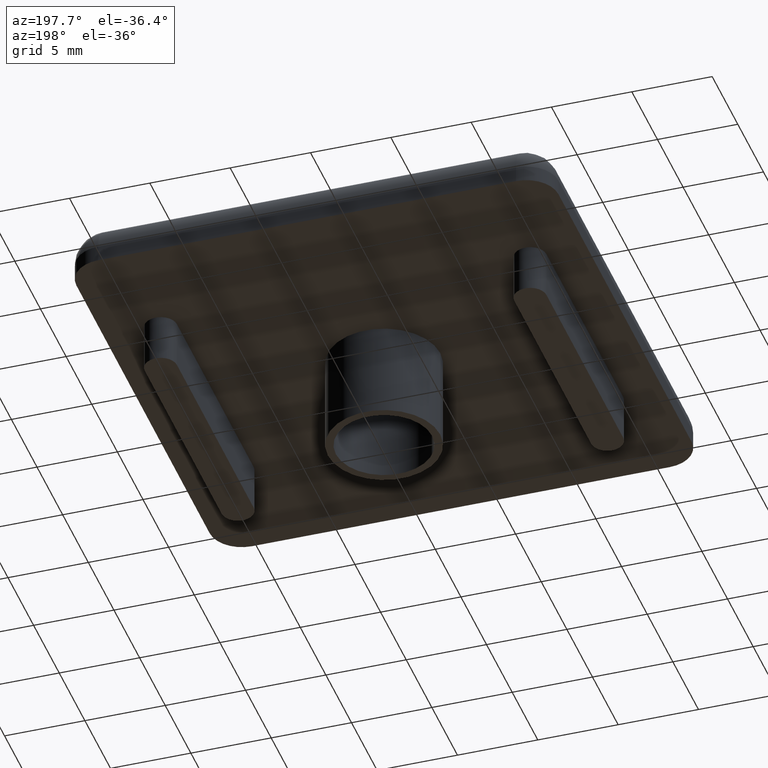
[diagram: clean part render]
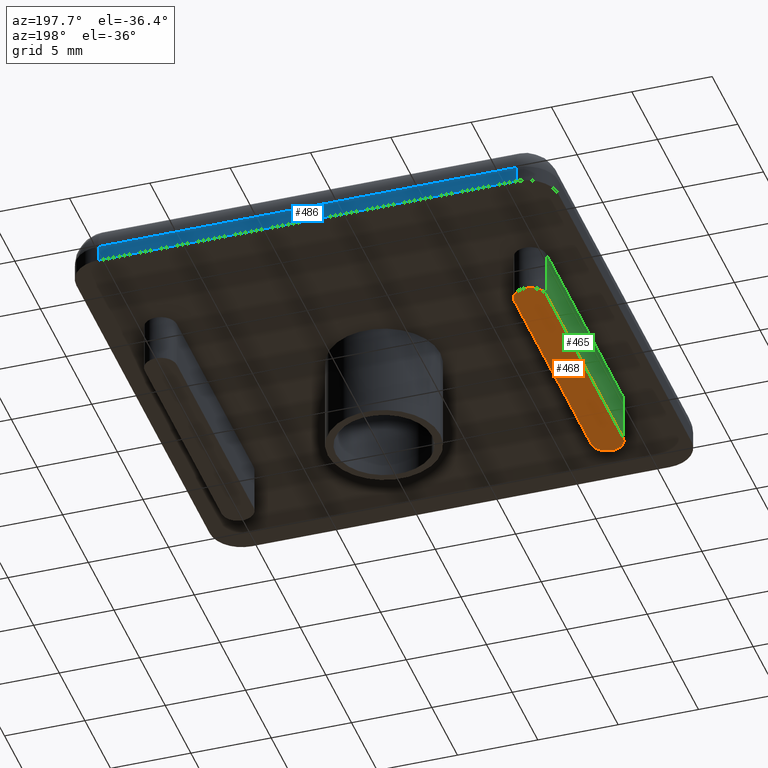
[diagram: same view with three faces highlighted in distinct colors, each labeled with its STEP entity id]
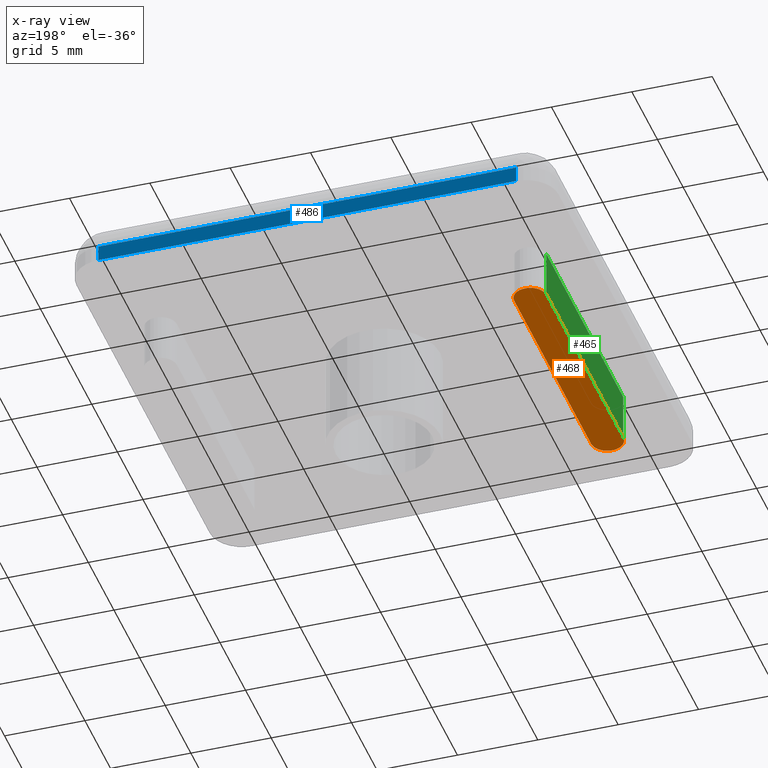
[diagram: x-ray of the same camera — body ghosted, the three highlighted faces saturated]
A machine part, auxiliary view with three faces highlighted in distinct colors.
The next image is the same camera in x-ray (body ghosted, the three faces saturated) — at least one of them is partly hidden behind the body in this view.
Their STEP definitions:

[orange] entity #468 — the highlighted planar face has unit normal (0, 0, 1).
#35=LINE('',#777,#71);
#38=LINE('',#784,#74);
#71=VECTOR('',#619,15.);
#74=VECTOR('',#628,15.);
#98=PLANE('',#518);
#124=FACE_OUTER_BOUND('',#162,.T.);
#162=EDGE_LOOP('',(#372,#373,#374,#375));
#195=CIRCLE('',#513,1.);
#196=CIRCLE('',#516,1.);
#233=VERTEX_POINT('',#770);
#234=VERTEX_POINT('',#772);
#235=VERTEX_POINT('',#776);
#236=VERTEX_POINT('',#780);
#278=EDGE_CURVE('',#234,#233,#195,.T.);
#280=EDGE_CURVE('',#235,#234,#35,.T.);
#282=EDGE_CURVE('',#236,#235,#196,.T.);
#284=EDGE_CURVE('',#233,#236,#38,.T.);
#372=ORIENTED_EDGE('',*,*,#284,.T.);
#373=ORIENTED_EDGE('',*,*,#282,.T.);
#374=ORIENTED_EDGE('',*,*,#280,.T.);
#375=ORIENTED_EDGE('',*,*,#278,.T.);
#468=ADVANCED_FACE('',(#124),#98,.F.);
#513=AXIS2_PLACEMENT_3D('',#773,#614,#615);
#516=AXIS2_PLACEMENT_3D('',#781,#623,#624);
#518=AXIS2_PLACEMENT_3D('',#785,#629,#630);
#614=DIRECTION('center_axis',(0.,0.,-1.));
#615=DIRECTION('ref_axis',(1.,0.,0.));
#619=DIRECTION('',(0.,1.,0.));
#623=DIRECTION('center_axis',(0.,0.,-1.));
#624=DIRECTION('ref_axis',(-1.,0.,0.));
#628=DIRECTION('',(0.,-1.,0.));
#629=DIRECTION('center_axis',(0.,0.,1.));
#630=DIRECTION('ref_axis',(1.,0.,0.));
#770=CARTESIAN_POINT('',(-10.5,7.5,-3.));
#772=CARTESIAN_POINT('',(-12.5,7.5,-3.));
#773=CARTESIAN_POINT('Origin',(-11.5,7.5,-3.));
#776=CARTESIAN_POINT('',(-12.5,-7.5,-3.));
#777=CARTESIAN_POINT('',(-12.5,7.5,-3.));
#780=CARTESIAN_POINT('',(-10.5,-7.5,-3.));
#781=CARTESIAN_POINT('Origin',(-11.5,-7.5,-3.));
#784=CARTESIAN_POINT('',(-10.5,-7.5,-3.));
#785=CARTESIAN_POINT('Origin',(-11.5,0.,-3.));

[blue] entity #486 — the highlighted planar face has unit normal (-0, 1, 0).
#22=LINE('',#735,#58);
#39=LINE('',#794,#75);
#42=LINE('',#805,#78);
#54=LINE('',#837,#90);
#58=VECTOR('',#578,26.);
#75=VECTOR('',#641,1.);
#78=VECTOR('',#654,1.);
#90=VECTOR('',#694,26.);
#104=PLANE('',#548);
#142=FACE_OUTER_BOUND('',#180,.T.);
#180=EDGE_LOOP('',(#437,#438,#439,#440));
#214=VERTEX_POINT('',#721);
#220=VERTEX_POINT('',#733);
#239=VERTEX_POINT('',#790);
#240=VERTEX_POINT('',#797);
#260=EDGE_CURVE('',#220,#214,#22,.T.);
#288=EDGE_CURVE('',#214,#239,#39,.T.);
#294=EDGE_CURVE('',#240,#220,#42,.T.);
#312=EDGE_CURVE('',#239,#240,#54,.T.);
#437=ORIENTED_EDGE('',*,*,#288,.F.);
#438=ORIENTED_EDGE('',*,*,#260,.F.);
#439=ORIENTED_EDGE('',*,*,#294,.F.);
#440=ORIENTED_EDGE('',*,*,#312,.F.);
#486=ADVANCED_FACE('',(#142),#104,.T.);
#548=AXIS2_PLACEMENT_3D('',#843,#705,#706);
#578=DIRECTION('',(1.,2.96059473233375E-16,0.));
#641=DIRECTION('',(0.,0.,1.));
#654=DIRECTION('',(0.,0.,-1.));
#694=DIRECTION('',(-1.,-2.96059473233375E-16,0.));
#705=DIRECTION('center_axis',(-2.96059473233375E-16,1.,0.));
#706=DIRECTION('ref_axis',(-1.,-3.5527136788005E-16,0.));
#721=CARTESIAN_POINT('',(13.,15.,0.));
#733=CARTESIAN_POINT('',(-13.,15.,0.));
#735=CARTESIAN_POINT('',(-15.,15.,0.));
#790=CARTESIAN_POINT('',(13.,15.,1.));
#794=CARTESIAN_POINT('',(13.,15.,0.));
#797=CARTESIAN_POINT('',(-13.,15.,1.));
#805=CARTESIAN_POINT('',(-13.,15.,0.));
#837=CARTESIAN_POINT('',(7.49999999999999,15.,1.));
#843=CARTESIAN_POINT('Origin',(15.,15.,0.));

[green] entity #465 — the highlighted planar face has unit normal (-1, 0, 0).
#23=LINE('',#740,#59);
#34=LINE('',#774,#70);
#35=LINE('',#777,#71);
#36=LINE('',#778,#72);
#59=VECTOR('',#581,15.);
#70=VECTOR('',#616,3.);
#71=VECTOR('',#619,15.);
#72=VECTOR('',#620,3.);
#96=PLANE('',#514);
#121=FACE_OUTER_BOUND('',#159,.T.);
#159=EDGE_LOOP('',(#360,#361,#362,#363));
#222=VERTEX_POINT('',#737);
#223=VERTEX_POINT('',#739);
#234=VERTEX_POINT('',#772);
#235=VERTEX_POINT('',#776);
#262=EDGE_CURVE('',#222,#223,#23,.T.);
#279=EDGE_CURVE('',#222,#234,#34,.T.);
#280=EDGE_CURVE('',#235,#234,#35,.T.);
#281=EDGE_CURVE('',#223,#235,#36,.T.);
#360=ORIENTED_EDGE('',*,*,#262,.F.);
#361=ORIENTED_EDGE('',*,*,#279,.T.);
#362=ORIENTED_EDGE('',*,*,#280,.F.);
#363=ORIENTED_EDGE('',*,*,#281,.F.);
#465=ADVANCED_FACE('',(#121),#96,.T.);
#514=AXIS2_PLACEMENT_3D('',#775,#617,#618);
#581=DIRECTION('',(0.,-1.,0.));
#616=DIRECTION('',(0.,0.,-1.));
#617=DIRECTION('center_axis',(-1.,0.,0.));
#618=DIRECTION('ref_axis',(0.,1.,0.));
#619=DIRECTION('',(0.,1.,0.));
#620=DIRECTION('',(0.,0.,-1.));
#737=CARTESIAN_POINT('',(-12.5,7.5,0.));
#739=CARTESIAN_POINT('',(-12.5,-7.5,0.));
#740=CARTESIAN_POINT('',(-12.5,-3.75,0.));
#772=CARTESIAN_POINT('',(-12.5,7.5,-3.));
#774=CARTESIAN_POINT('',(-12.5,7.5,0.));
#775=CARTESIAN_POINT('Origin',(-12.5,-7.5,0.));
#776=CARTESIAN_POINT('',(-12.5,-7.5,-3.));
#777=CARTESIAN_POINT('',(-12.5,7.5,-3.));
#778=CARTESIAN_POINT('',(-12.5,-7.5,0.));